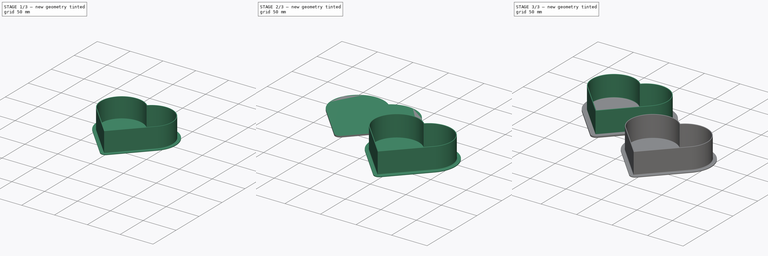
[diagram: build sequence overview — one tinted view per stage of 3, left to right]
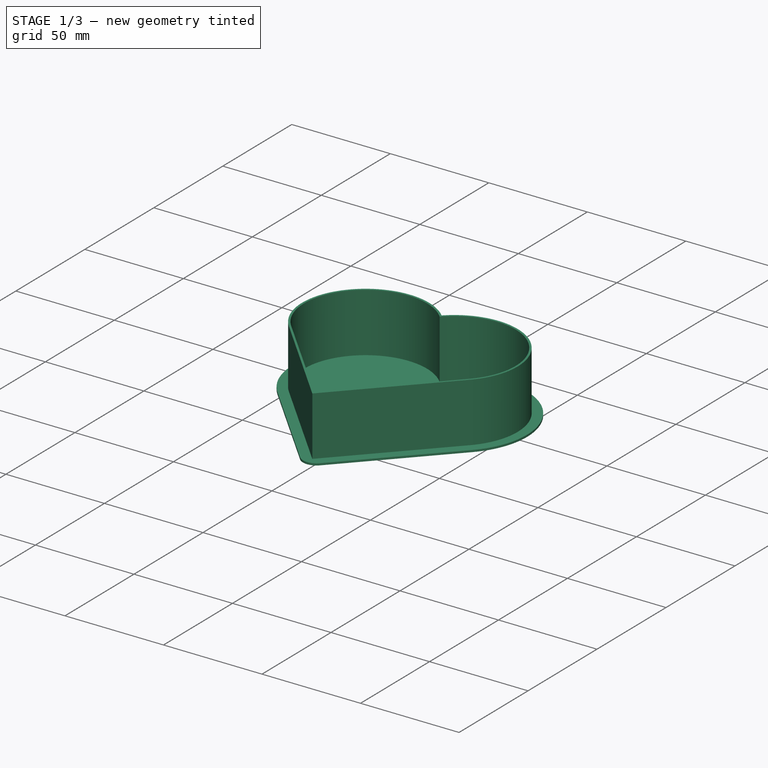
[diagram: stage 1 of 3 — iso view after this stage's code; geometry added in this stage tinted green]
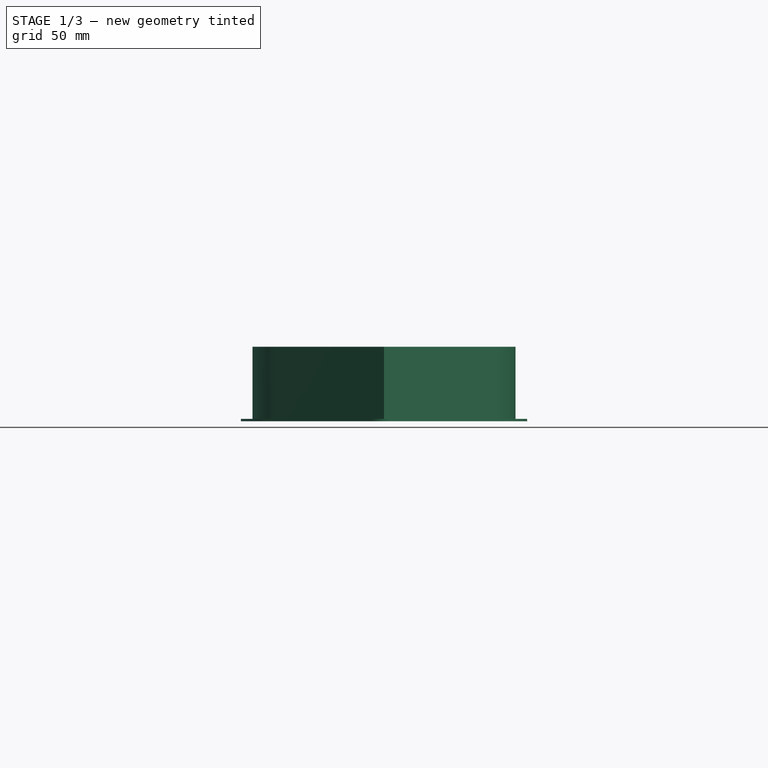
[diagram: stage 1 of 3 — front view after this stage's code; geometry added in this stage tinted green]
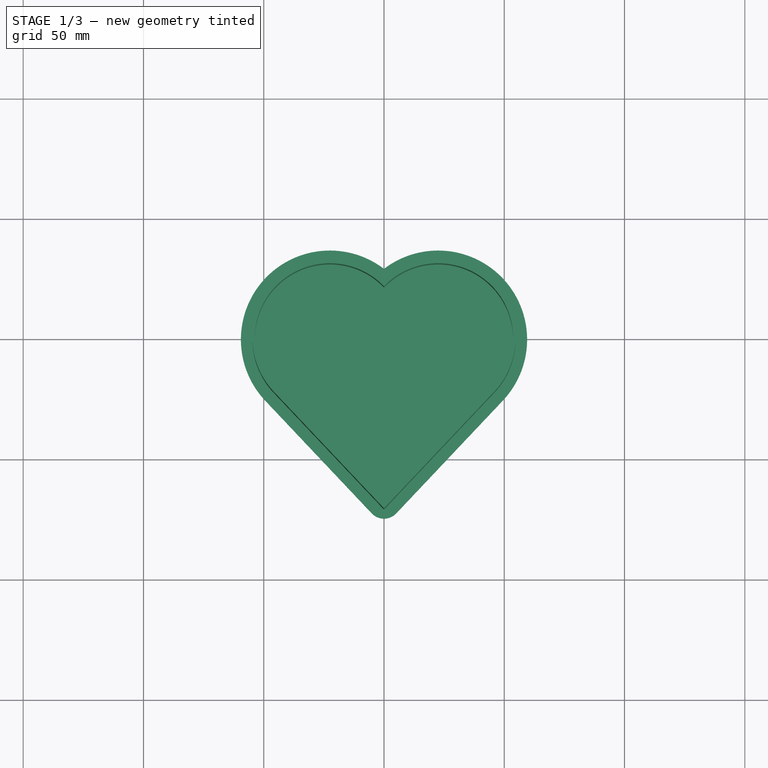
[diagram: stage 1 of 3 — top view after this stage's code; geometry added in this stage tinted green]
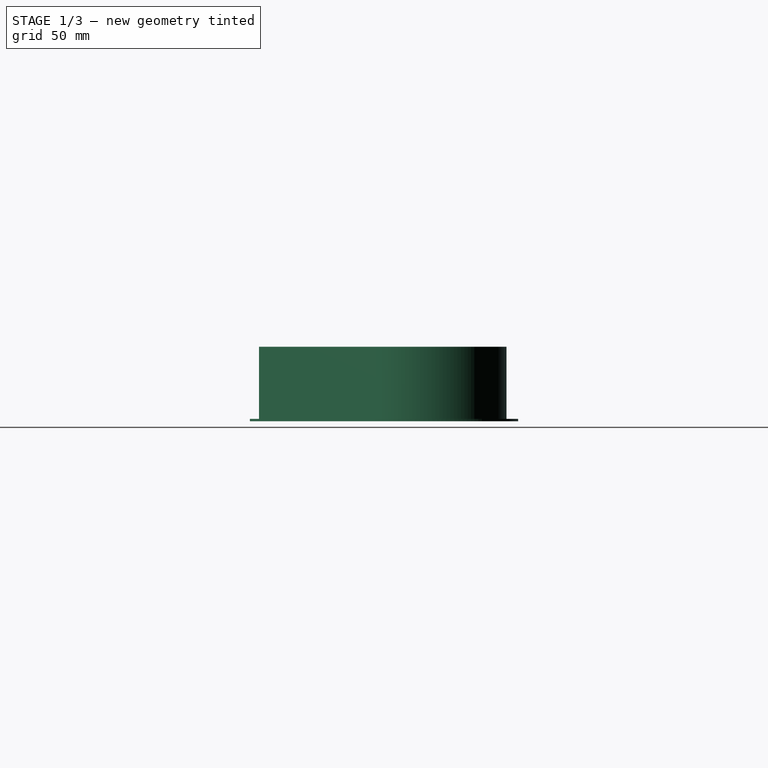
[diagram: stage 1 of 3 — right view after this stage's code; geometry added in this stage tinted green]
FCSTD DOCUMENT  (FreeCAD 1.0R39109 (Git))
Label: ValentinsBox
License: All rights reserved
LicenseURL: http://en.wikipedia.org/wiki/All_rights_reserved
objects: Part::Offset2D×5, Part::Extrusion×4, Part::MultiFuse×2, Part::Fillet×2, App::VarSet×1, Sketcher::SketchObject×1
note: 15 computed .brp shape members not serialized (recipe doc carries the construction recipe); baked Part::Feature solids carry a one-line shape summary decoded from their .brp

FEATURE [Part::Offset2D] Offset2D002
  Fill = false
  Intersection = false
  Join = 1
  Mode = 1
  SelfIntersection = false
  Source = -> Sketch
  Value = 1.2
  expr: Value = VarSet.WallThickness + VarSet.WallOffset
FEATURE [Part::Offset2D] Offset2D003
  Fill = true
  Intersection = false
  Join = 1
  Mode = 1
  SelfIntersection = false
  Source = -> Offset2D002
  Value = 1
  expr: Value = VarSet.WallThickness
FEATURE [Part::Extrusion] Extrude002
  Base = -> Offset2D003
  Dir = (0,0,1)
  DirMode = 2
  FaceMakerClass = Part::FaceMakerBullseye
  FaceMakerMode = 3
  LengthFwd = 31
  LengthRev = 0
  Solid = false
  Symmetric = false
  expr: LengthFwd = VarSet.WallHeight + VarSet.BoxTopThickness
FEATURE [Part::Offset2D] Offset2D004
  Fill = false
  Intersection = false
  Join = 0
  Mode = 1
  SelfIntersection = false
  Source = -> Sketch
  Value = 7
  expr: Value = VarSet.BoxOffset
FEATURE [Part::Extrusion] Extrude003
  Base = -> Offset2D004
  Dir = (0,0,1)
  DirMode = 2
  FaceMakerClass = Part::FaceMakerBullseye
  FaceMakerMode = 3
  LengthFwd = 1
  LengthRev = 0
  Solid = true
  Symmetric = false
  expr: LengthFwd = VarSet.BoxTopThickness
FEATURE [Part::MultiFuse] Fusion001
  Refine = true
  Shapes = -> [Extrude002,Extrude003]
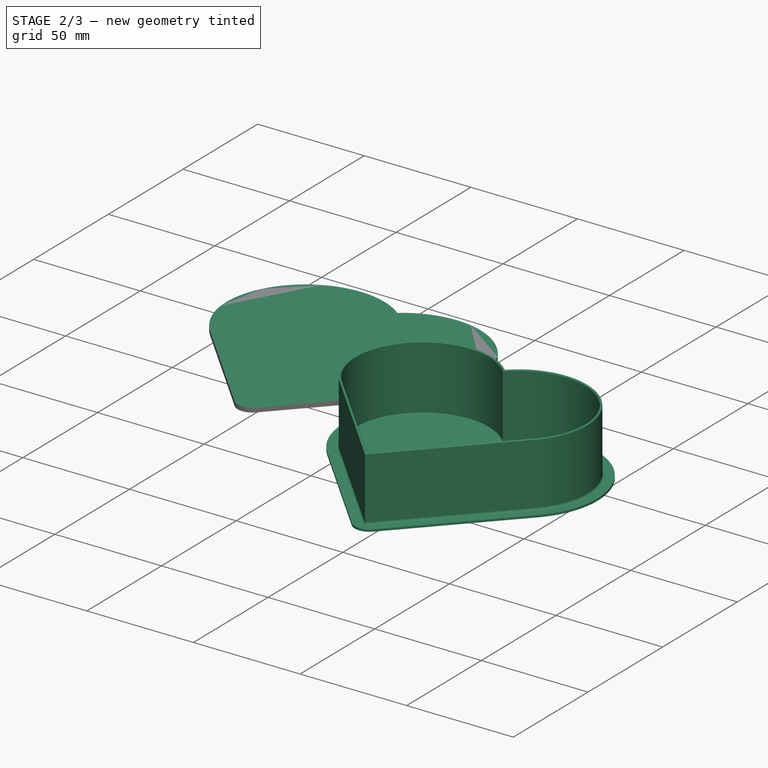
[diagram: stage 2 of 3 — iso view after this stage's code; geometry added in this stage tinted green]
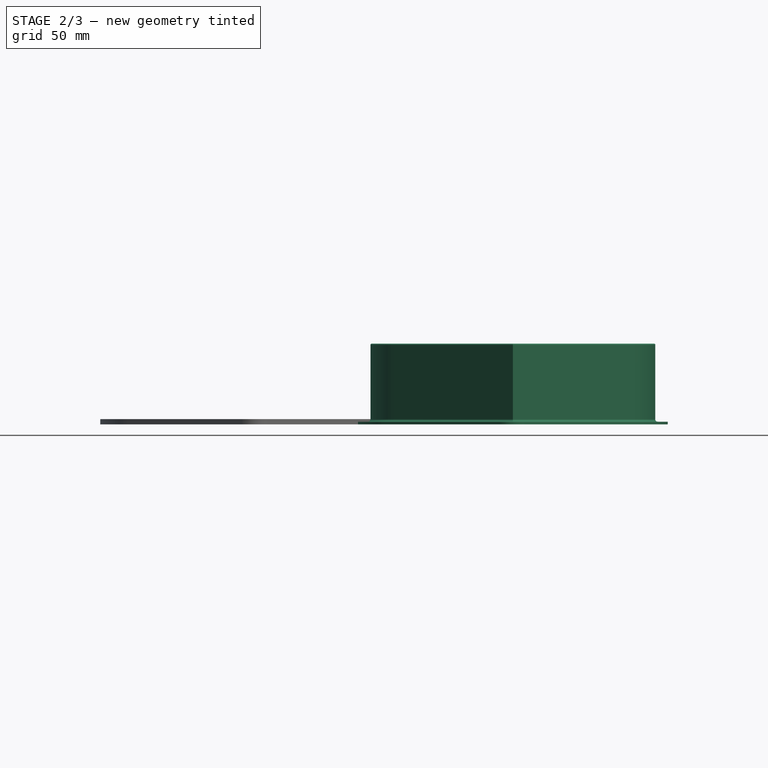
[diagram: stage 2 of 3 — front view after this stage's code; geometry added in this stage tinted green]
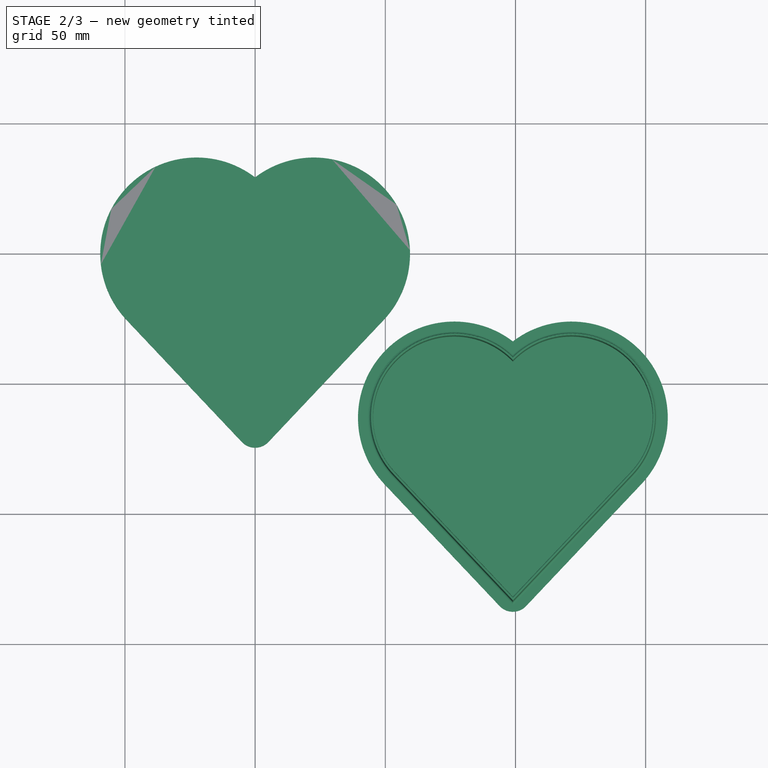
[diagram: stage 2 of 3 — top view after this stage's code; geometry added in this stage tinted green]
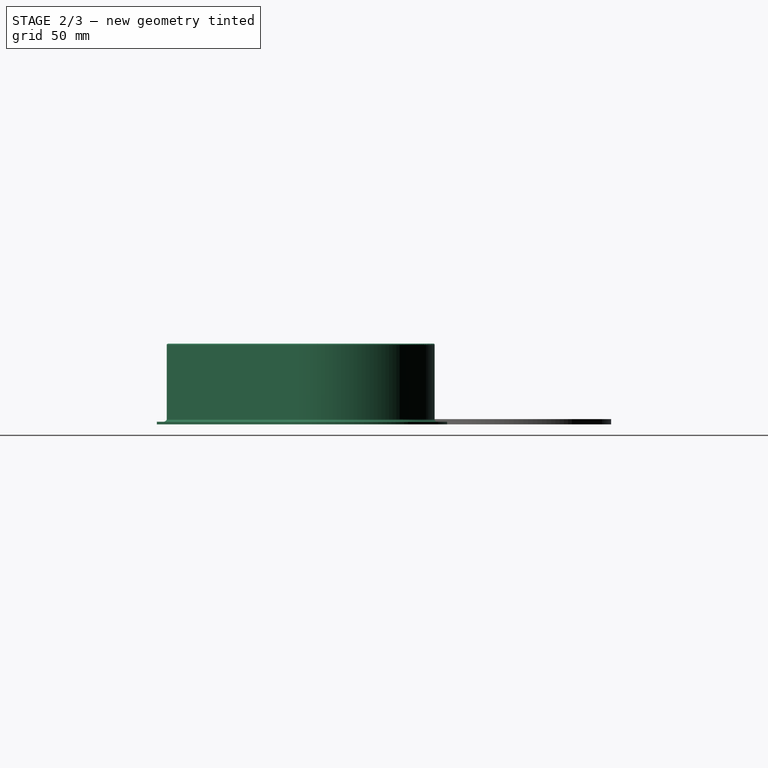
[diagram: stage 2 of 3 — right view after this stage's code; geometry added in this stage tinted green]
FEATURE [Part::Offset2D] Offset2D001
  Fill = false
  Intersection = false
  Join = 0
  Mode = 1
  SelfIntersection = false
  Source = -> Sketch
  Value = 7
  expr: Value = VarSet.BoxOffset
FEATURE [Part::Extrusion] Extrude001
  Base = -> Offset2D001
  Dir = (0,0,1)
  DirMode = 2
  FaceMakerClass = Part::FaceMakerBullseye
  FaceMakerMode = 3
  LengthFwd = 2
  LengthRev = 0
  Solid = true
  Symmetric = false
  expr: LengthFwd = VarSet.BoxBottomThickness
FEATURE [Part::Fillet] Fillet001  label="Top-Fillet"
  Base = -> Fusion001
  EdgeLinks = -> Fusion001 [Edge16,Edge17,Edge18,Edge19,Edge21,Edge24,Edge26,Edge27,Edge28,Edge29,Edge30,Edge31]
  Edges = 12 edges: [Edge16 r=1,Edge17 r=1,Edge18 r=1,Edge19 r=1,Edge21 r=0.45,Edge24 r=0.45,Edge26 r=0.45,Edge27 r=0.45,Edge28 r=0.45,Edge29 r=0.45,Edge30 r=0.45,Edge31 r=0.45]
  Placement = pos=(99,-63,0) rot=(0,0,1;0rad)
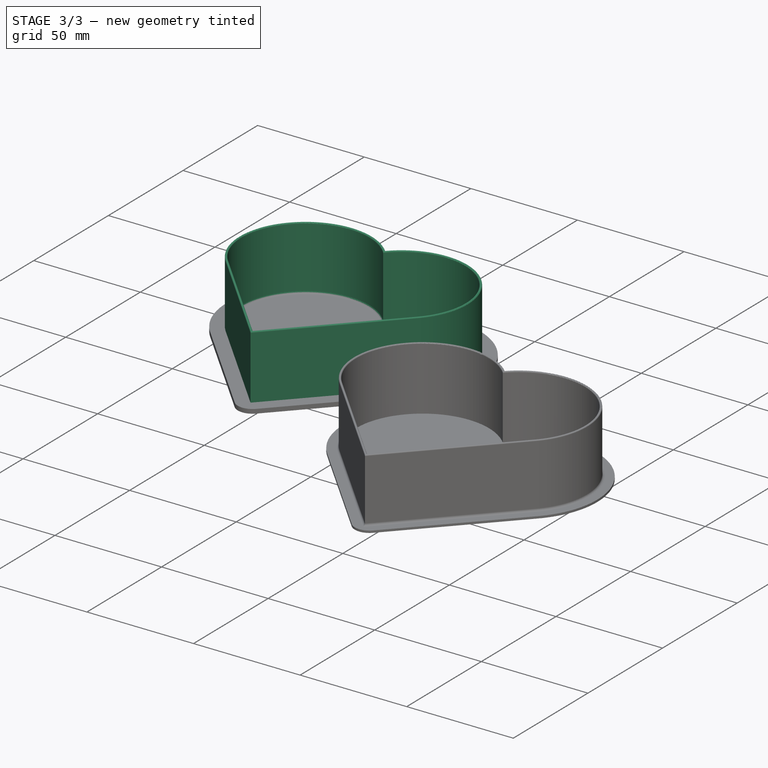
[diagram: stage 3 of 3 — iso view after this stage's code; geometry added in this stage tinted green]
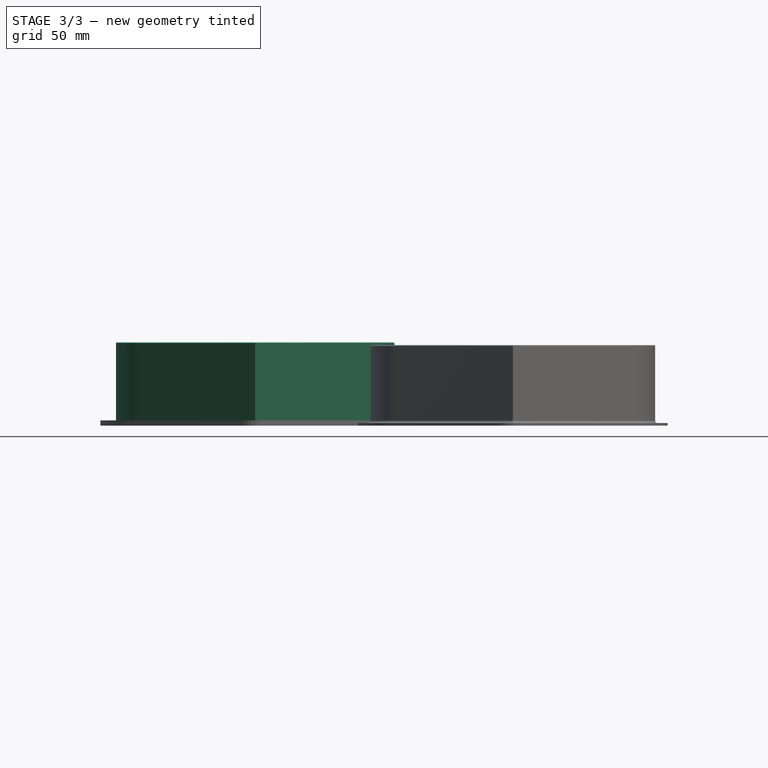
[diagram: stage 3 of 3 — front view after this stage's code; geometry added in this stage tinted green]
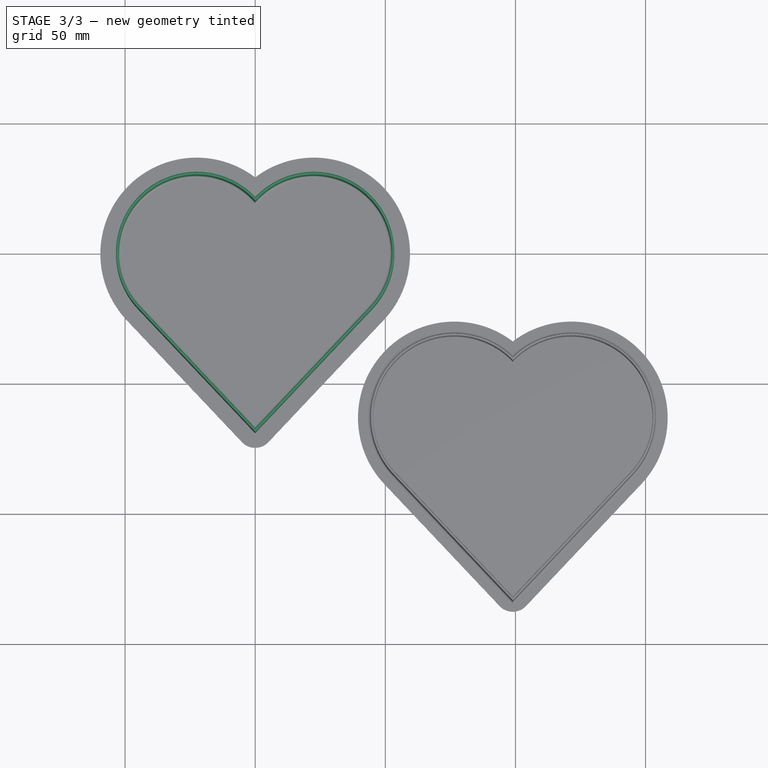
[diagram: stage 3 of 3 — top view after this stage's code; geometry added in this stage tinted green]
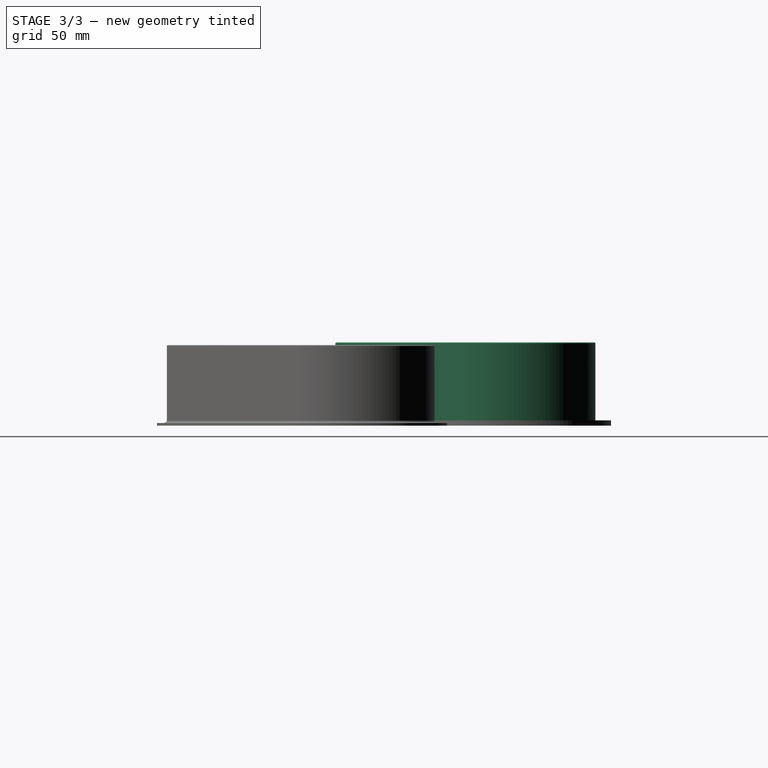
[diagram: stage 3 of 3 — right view after this stage's code; geometry added in this stage tinted green]
FEATURE [App::VarSet] VarSet
  BoxBottomThickness = 2
  BoxOffset = 7
  BoxTopThickness = 1
  HeartChamberLength = 67.5
  HeartChamberRadius = 30
  HeartChamberWidth = 45
  WallHeight = 30
  WallOffset = 0.2
  WallThickness = 1
  expr: HeartChamberLength = HeartChamberRadius * 2.25
  expr: HeartChamberWidth = HeartChamberRadius * 1.5
FEATURE [Sketcher::SketchObject] Sketch
  ArcFitTolerance = 1e-06
  FullyConstrained = true
  MakeInternals = false
  expr: Constraints[10] = VarSet.HeartChamberLength
  expr: Constraints[8] = VarSet.HeartChamberRadius
  expr: Constraints[9] = VarSet.HeartChamberWidth
  sketch-geometry (4):
    g0: ArcOfCircle CenterX=22.5 CenterY=0 CenterZ=0 NormalX=0 NormalY=0 NormalZ=1 AngleXU=0 Radius=30 StartAngle=5.52618 EndAngle=8.70204
    g1: ArcOfCircle CenterX=-22.5 CenterY=0 CenterZ=0 NormalX=0 NormalY=0 NormalZ=1 AngleXU=0 Radius=30 StartAngle=0.722734 EndAngle=3.89859
    g2: LineSegment StartX=-44.307 StartY=-20.6023 StartZ=0 EndX=0 EndY=-67.5 EndZ=0
    g3: LineSegment StartX=0 StartY=-67.5 StartZ=0 EndX=44.307 EndY=-20.6023 EndZ=0
  constraints (11):
    c: PointOnObject(g0,g-1)
    c: PointOnObject(g0,g-2)
    c: Coincident(g1,g0)
    c: Tangent(g1,g2) = -1.5708
    c: Coincident(g2,g3)
    c: Symmetric(g0,g1,g-1)
    c: Tangent(g3,g0) = -1.5708
    c: PointOnObject(g2,g-2)
    c: Radius(g0) = 30
    c: DistanceX(g1,g0) = 45
    c: DistanceY(g2,g-1) = 67.5
FEATURE [Part::Offset2D] Offset2D
  Fill = true
  Intersection = false
  Join = 1
  Mode = 1
  SelfIntersection = false
  Source = -> Sketch
  Value = 1
  expr: Value = VarSet.WallThickness
FEATURE [Part::Extrusion] Extrude
  Base = -> Offset2D
  Dir = (0,0,1)
  DirMode = 2
  FaceMakerClass = Part::FaceMakerBullseye
  FaceMakerMode = 3
  LengthFwd = 32
  LengthRev = 0
  Solid = false
  Symmetric = false
  expr: LengthFwd = VarSet.WallHeight + VarSet.BoxBottomThickness
FEATURE [Part::MultiFuse] Fusion  label="Bottom-Fusion"
  Refine = true
  Shapes = -> [Extrude,Extrude001]
FEATURE [Part::Fillet] Fillet  label="Bottom-Fillet"
  Base = -> Fusion
  EdgeLinks = -> Fusion [Edge21,Edge24,Edge26,Edge27,Edge28,Edge29,Edge30,Edge31,Edge32,Edge35,Edge37,Edge39]
  Edges = 12 edges: [Edge21 r=0.45,Edge24 r=0.45,Edge26 r=0.45,Edge27 r=0.45,Edge28 r=0.45,Edge29 r=0.45,Edge30 r=0.45,Edge31 r=0.45,Edge32 r=1,Edge35 r=1,Edge37 r=1,Edge39 r=1]
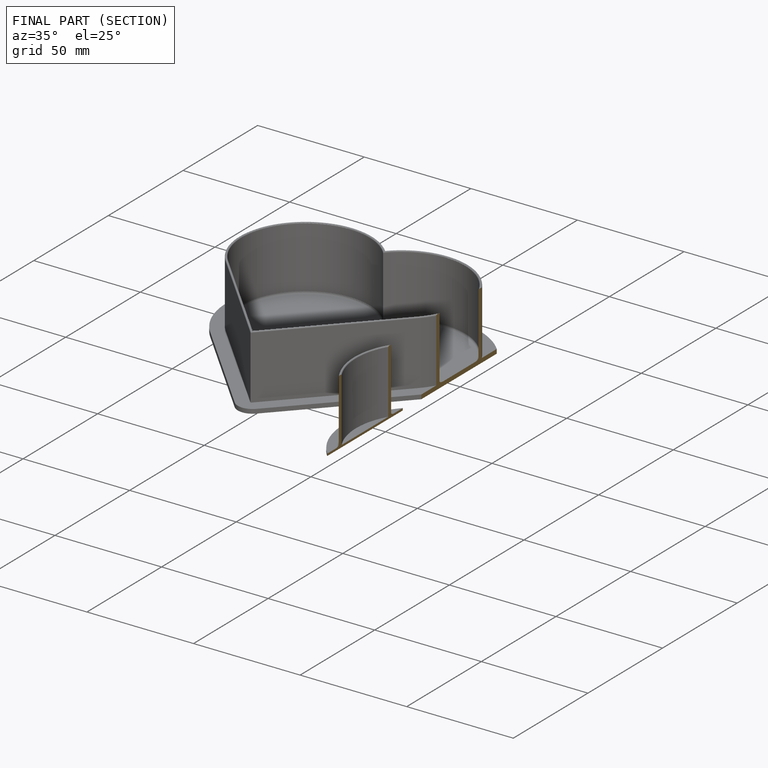
[diagram: finished part — half-section view (interior)]
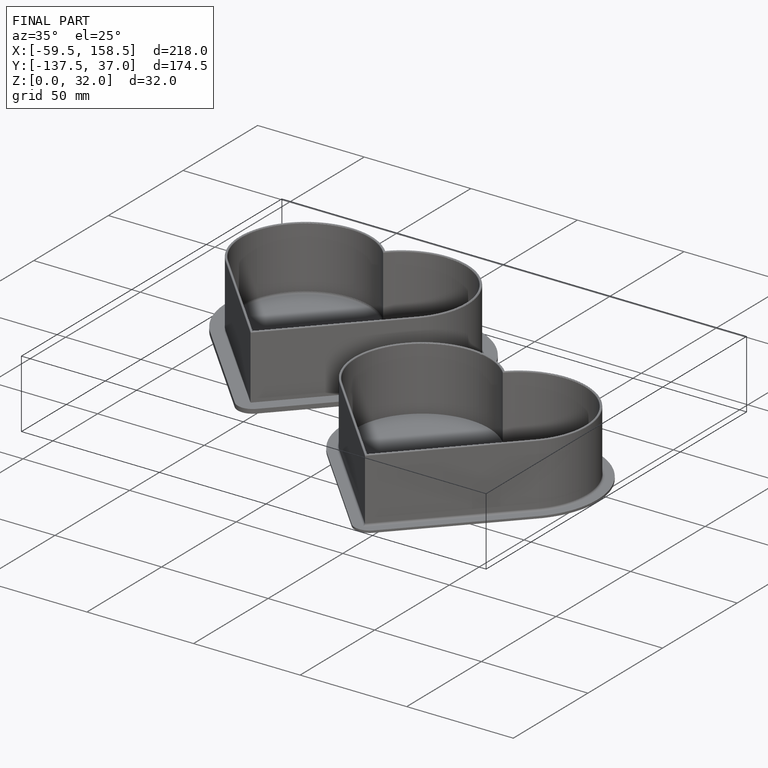
[diagram: finished part — iso view with bounding-box wireframe]
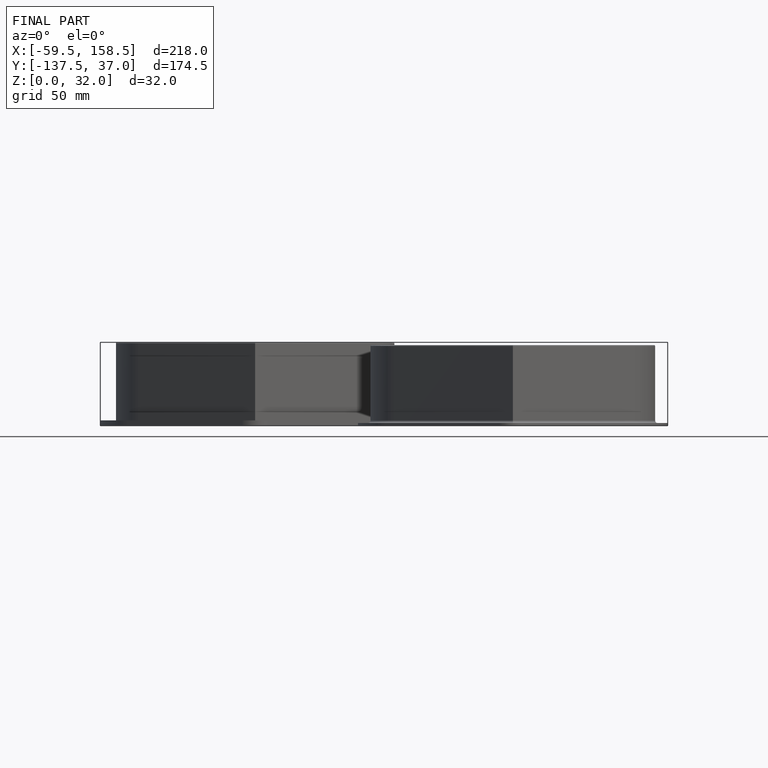
[diagram: finished part — front view with bounding-box wireframe]
